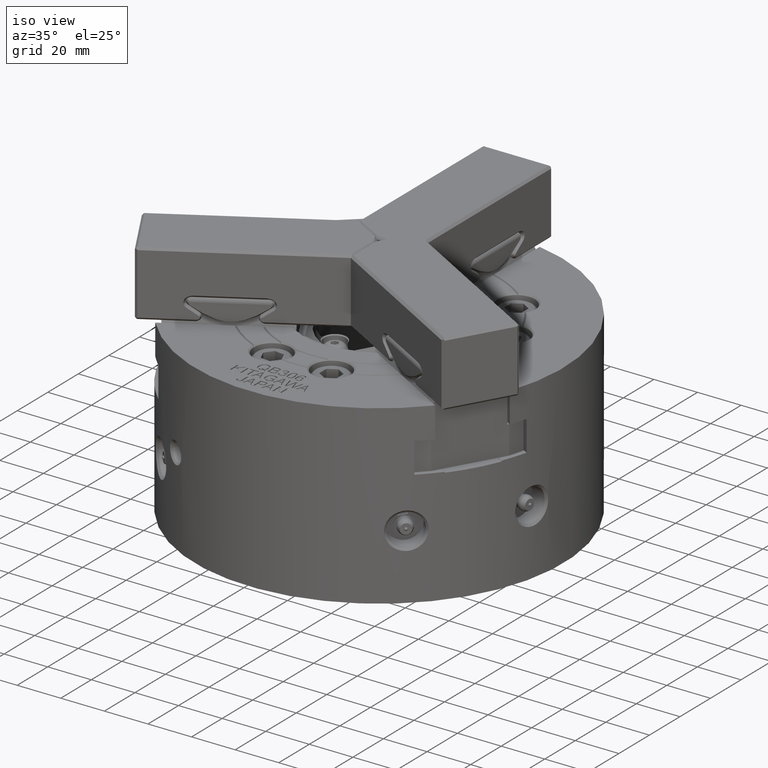
[diagram: clean part render]
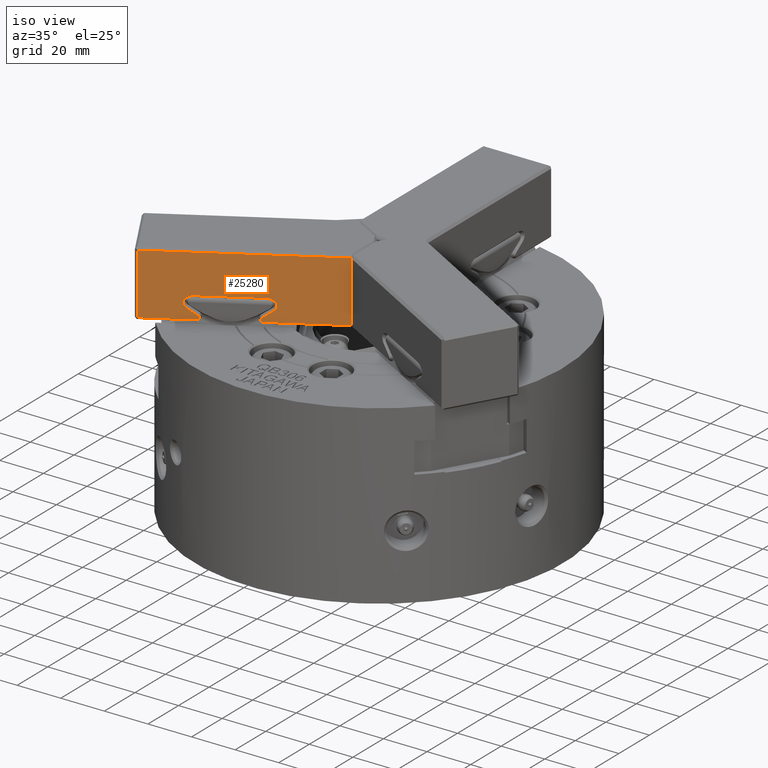
[diagram: same view with one face highlighted and labeled with its STEP entity id]
A machine part, iso view. The second image highlights one B-rep face of the part: STEP entity #25280.
In plain terms, the highlighted planar face has unit normal (0.5, -0.866, 0).
Its self-contained STEP definition (entity closure, byte-faithful):
#991=B_SPLINE_CURVE_WITH_KNOTS('',3,(#46148,#46149,#46150,#46151,#46152,
#46153,#46154,#46155,#46156,#46157),.UNSPECIFIED.,.F.,.F.,(4,1,1,1,1,1,
1,4),(0.,0.25,0.375,0.5,0.5625,0.625,0.75,1.),.UNSPECIFIED.);
#992=B_SPLINE_CURVE_WITH_KNOTS('',3,(#46159,#46160,#46161,#46162),
 .UNSPECIFIED.,.F.,.F.,(4,4),(0.,1.),.UNSPECIFIED.);
#993=B_SPLINE_CURVE_WITH_KNOTS('',3,(#46164,#46165,#46166,#46167,#46168,
#46169,#46170,#46171,#46172,#46173,#46174,#46175,#46176,#46177),
 .UNSPECIFIED.,.F.,.F.,(4,1,1,1,1,1,1,1,1,1,1,4),(0.,0.125,0.25,0.3125,
0.375,0.5,0.625,0.6875,0.75,0.8125,0.875,1.),.UNSPECIFIED.);
#994=B_SPLINE_CURVE_WITH_KNOTS('',3,(#46181,#46182,#46183,#46184,#46185,
#46186,#46187,#46188,#46189,#46190,#46191,#46192,#46193,#46194,#46195,#46196),
 .UNSPECIFIED.,.F.,.F.,(4,1,1,1,1,1,1,1,1,1,1,1,1,4),(0.,0.125,0.1875,0.25,
0.3125,0.375,0.4375,0.5,0.5625,0.625,0.6875,0.75,0.875,1.),
 .UNSPECIFIED.);
#995=B_SPLINE_CURVE_WITH_KNOTS('',3,(#46198,#46199,#46200,#46201),
 .UNSPECIFIED.,.F.,.F.,(4,4),(0.,1.),.UNSPECIFIED.);
#996=B_SPLINE_CURVE_WITH_KNOTS('',3,(#46203,#46204,#46205,#46206,#46207,
#46208,#46209,#46210,#46211,#46212,#46213),.UNSPECIFIED.,.F.,.F.,(4,1,1,
1,1,1,1,1,4),(0.,0.125,0.25,0.375,0.4375,0.5,0.625,0.75,1.),
 .UNSPECIFIED.);
#2835=LINE('',#45259,#4869);
#2923=LINE('',#46142,#4957);
#2924=LINE('',#46144,#4958);
#2925=LINE('',#46146,#4959);
#2926=LINE('',#46179,#4960);
#2927=LINE('',#46215,#4961);
#4869=VECTOR('',#32744,1000.);
#4957=VECTOR('',#32902,1000.);
#4958=VECTOR('',#32903,1000.);
#4959=VECTOR('',#32904,1000.);
#4960=VECTOR('',#32905,1000.);
#4961=VECTOR('',#32906,1000.);
#10535=ORIENTED_EDGE('',*,*,#15199,.F.);
#10536=ORIENTED_EDGE('',*,*,#15353,.T.);
#10537=ORIENTED_EDGE('',*,*,#15354,.T.);
#10538=ORIENTED_EDGE('',*,*,#15355,.T.);
#10539=ORIENTED_EDGE('',*,*,#15356,.T.);
#10540=ORIENTED_EDGE('',*,*,#15357,.T.);
#10541=ORIENTED_EDGE('',*,*,#15358,.T.);
#10542=ORIENTED_EDGE('',*,*,#15359,.T.);
#10543=ORIENTED_EDGE('',*,*,#15360,.T.);
#10544=ORIENTED_EDGE('',*,*,#15361,.T.);
#10545=ORIENTED_EDGE('',*,*,#15362,.T.);
#10546=ORIENTED_EDGE('',*,*,#15363,.T.);
#15199=EDGE_CURVE('',#18023,#18024,#2835,.T.);
#15353=EDGE_CURVE('',#18023,#18134,#2923,.T.);
#15354=EDGE_CURVE('',#18134,#18135,#2924,.T.);
#15355=EDGE_CURVE('',#18135,#18136,#2925,.T.);
#15356=EDGE_CURVE('',#18136,#18137,#991,.T.);
#15357=EDGE_CURVE('',#18137,#18138,#992,.T.);
#15358=EDGE_CURVE('',#18138,#18139,#993,.T.);
#15359=EDGE_CURVE('',#18139,#18140,#2926,.T.);
#15360=EDGE_CURVE('',#18140,#18141,#994,.T.);
#15361=EDGE_CURVE('',#18141,#18142,#995,.T.);
#15362=EDGE_CURVE('',#18142,#18143,#996,.T.);
#15363=EDGE_CURVE('',#18143,#18024,#2927,.T.);
#18023=VERTEX_POINT('',#45258);
#18024=VERTEX_POINT('',#45260);
#18134=VERTEX_POINT('',#46143);
#18135=VERTEX_POINT('',#46145);
#18136=VERTEX_POINT('',#46147);
#18137=VERTEX_POINT('',#46158);
#18138=VERTEX_POINT('',#46163);
#18139=VERTEX_POINT('',#46178);
#18140=VERTEX_POINT('',#46180);
#18141=VERTEX_POINT('',#46197);
#18142=VERTEX_POINT('',#46202);
#18143=VERTEX_POINT('',#46214);
#20790=EDGE_LOOP('',(#10535,#10536,#10537,#10538,#10539,#10540,#10541,#10542,
#10543,#10544,#10545,#10546));
#22720=FACE_BOUND('',#20790,.T.);
#24048=PLANE('',#27438);
#25280=ADVANCED_FACE('',(#22720),#24048,.T.);
#27438=AXIS2_PLACEMENT_3D('',#46141,#32900,#32901);
#32744=DIRECTION('',(0.,0.,-1.));
#32900=DIRECTION('',(0.499999999999999,-0.866025403784439,0.));
#32901=DIRECTION('',(0.866025403784439,0.499999999999999,0.));
#32902=DIRECTION('',(-0.866025403784439,-0.499999999999999,0.));
#32903=DIRECTION('',(0.,0.,-1.));
#32904=DIRECTION('',(0.866025403784439,0.499999999999999,0.));
#32905=DIRECTION('',(0.866025403784439,0.499999999999999,0.));
#32906=DIRECTION('',(0.866025403784439,0.499999999999999,0.));
#45258=CARTESIAN_POINT('',(1.96891114523368E-13,-18.475208614068,30.));
#45259=CARTESIAN_POINT('',(1.99493199737333E-13,-18.475208614068,31.));
#45260=CARTESIAN_POINT('',(1.99059518868339E-13,-18.475208614068,2.));
#46141=CARTESIAN_POINT('',(7.28346642355032,-14.2700973137977,31.));
#46142=CARTESIAN_POINT('',(-69.7927945132648,-58.7700973137976,30.));
#46143=CARTESIAN_POINT('',(-69.7927945132648,-58.7700973137976,30.));
#46144=CARTESIAN_POINT('',(-69.7927945132648,-58.7700973137976,31.));
#46145=CARTESIAN_POINT('',(-69.7927945132648,-58.7700973137976,2.));
#46146=CARTESIAN_POINT('',(7.28346642355032,-14.2700973137977,2.));
#46147=CARTESIAN_POINT('',(-50.7124392808975,-47.7540490841567,2.));
#46148=CARTESIAN_POINT('',(-50.7124392808975,-47.7540490841568,1.99999999999999));
#46149=CARTESIAN_POINT('',(-50.4635996152168,-47.6103814361909,2.00071010643555));
#46150=CARTESIAN_POINT('',(-50.1329431553662,-47.4194768400869,2.05808572921311));
#46151=CARTESIAN_POINT('',(-49.7647326096792,-47.206890382416,2.26750163355856));
#46152=CARTESIAN_POINT('',(-49.5857802298847,-47.1035721777696,2.41994427505268));
#46153=CARTESIAN_POINT('',(-49.4231604798949,-47.0096836213374,2.63600959992255));
#46154=CARTESIAN_POINT('',(-49.33358649954,-46.9579680596671,2.84440033199698));
#46155=CARTESIAN_POINT('',(-49.3228499852013,-46.9517693302235,3.25921531386295));
#46156=CARTESIAN_POINT('',(-49.5284199153666,-47.0704551847418,3.54681886708664));
#46157=CARTESIAN_POINT('',(-49.7516993787809,-47.1993656430485,3.70710678118654));
#46158=CARTESIAN_POINT('',(-49.7516993787809,-47.1993656430485,3.70710678118655));
#46159=CARTESIAN_POINT('',(-49.7516993787809,-47.1993656430485,3.70710678118654));
#46160=CARTESIAN_POINT('',(-50.9861410903959,-47.9120708975483,4.59193035047916));
#46161=CARTESIAN_POINT('',(-52.3235931777369,-48.6842492202029,5.64912130889709));
#46162=CARTESIAN_POINT('',(-53.764055640804,-49.5159006110122,6.87867965644035));
#46163=CARTESIAN_POINT('',(-53.764055640804,-49.5159006110122,6.87867965644035));
#46164=CARTESIAN_POINT('',(-53.764055640804,-49.5159006110122,6.87867965644035));
#46165=CARTESIAN_POINT('',(-54.0288535959541,-49.668781781699,7.10326964046241));
#46166=CARTESIAN_POINT('',(-54.4539658842986,-49.9142204758105,7.60137657183566));
#46167=CARTESIAN_POINT('',(-54.7376287762253,-50.0779933228235,8.37168472617594));
#46168=CARTESIAN_POINT('',(-54.7916557531703,-50.1091858125062,9.0308931964808));
#46169=CARTESIAN_POINT('',(-54.6975225965486,-50.054838009191,9.75391518889932));
#46170=CARTESIAN_POINT('',(-54.3695740869187,-49.8654968488758,10.5205377721706));
#46171=CARTESIAN_POINT('',(-53.850635621152,-49.5658875859725,11.0785085991882));
#46172=CARTESIAN_POINT('',(-53.3498125667833,-49.2767372607164,11.4378075820629));
#46173=CARTESIAN_POINT('',(-52.8900616452277,-49.0112999423961,11.670977265787));
#46174=CARTESIAN_POINT('',(-52.5058517545147,-48.7894762585676,11.8110849070072));
#46175=CARTESIAN_POINT('',(-51.9324994784107,-48.4584511676185,11.9581138525218));
#46176=CARTESIAN_POINT('',(-51.4792833019881,-48.1967866861599,11.9999218721239));
#46177=CARTESIAN_POINT('',(-51.1617711418641,-48.0134709550413,12.));
#46178=CARTESIAN_POINT('',(-51.1617711418641,-48.0134709550412,12.));
#46179=CARTESIAN_POINT('',(-28.8438010291753,-35.1281849027144,12.));
#46180=CARTESIAN_POINT('',(-27.8020396197547,-34.5267236725541,12.));
#46181=CARTESIAN_POINT('',(-27.8020396197589,-34.5267236725565,12.));
#46182=CARTESIAN_POINT('',(-27.4867205088767,-34.344674099008,11.9991890547449));
#46183=CARTESIAN_POINT('',(-27.0361647219011,-34.0845455941127,11.957299953776));
#46184=CARTESIAN_POINT('',(-26.4652198875338,-33.7549104402983,11.8120884982032));
#46185=CARTESIAN_POINT('',(-26.0820084567486,-33.5336632175779,11.6745281555997));
#46186=CARTESIAN_POINT('',(-25.6233978708593,-33.2688842723616,11.4442044238726));
#46187=CARTESIAN_POINT('',(-25.2486298398318,-33.0525118487641,11.1793415954943));
#46188=CARTESIAN_POINT('',(-24.9113408929816,-32.8577779845055,10.8570506961305));
#46189=CARTESIAN_POINT('',(-24.6377432030802,-32.6998162845913,10.5106633306461));
#46190=CARTESIAN_POINT('',(-24.3693515497262,-32.5448602912791,10.029742053916));
#46191=CARTESIAN_POINT('',(-24.2229482482837,-32.460334305781,9.5600985432177));
#46192=CARTESIAN_POINT('',(-24.165792309091,-32.4273353089023,9.06837155613186));
#46193=CARTESIAN_POINT('',(-24.2274897308766,-32.4629563319785,8.36680199470031));
#46194=CARTESIAN_POINT('',(-24.5032200632727,-32.6221493136112,7.61078476499259));
#46195=CARTESIAN_POINT('',(-24.9326070681142,-32.8700560164429,7.10458993630693));
#46196=CARTESIAN_POINT('',(-25.1997551208147,-33.0242940165831,6.87867965644035));
#46197=CARTESIAN_POINT('',(-25.1997551208147,-33.0242940165831,6.87867965644035));
#46198=CARTESIAN_POINT('',(-25.1997551208148,-33.0242940165831,6.87867965644033));
#46199=CARTESIAN_POINT('',(-26.6402175838819,-33.8559454073925,5.64912130889708));
#46200=CARTESIAN_POINT('',(-27.9776696712229,-34.628123730047,4.59193035047914));
#46201=CARTESIAN_POINT('',(-29.2121113828379,-35.3408289845468,3.70710678118653));
#46202=CARTESIAN_POINT('',(-29.2121113828379,-35.3408289845468,3.70710678118654));
#46203=CARTESIAN_POINT('',(-29.2121113828379,-35.3408289845468,3.70710678118654));
#46204=CARTESIAN_POINT('',(-29.3194070697498,-35.4027761782683,3.63012405325066));
#46205=CARTESIAN_POINT('',(-29.4922192769772,-35.5025493526303,3.45912824594307));
#46206=CARTESIAN_POINT('',(-29.6329651628454,-35.5838090277236,3.16437860459251));
#46207=CARTESIAN_POINT('',(-29.6343636932181,-35.5846164696108,2.85478615168038));
#46208=CARTESIAN_POINT('',(-29.5441307419679,-35.5325204509167,2.6409029902128));
#46209=CARTESIAN_POINT('',(-29.3747203301835,-35.4347113040694,2.41558498933241));
#46210=CARTESIAN_POINT('',(-29.1993575776353,-35.3334655716799,2.26815298600829));
#46211=CARTESIAN_POINT('',(-28.8300730499005,-35.1202590501847,2.05725713542863));
#46212=CARTESIAN_POINT('',(-28.5001057070726,-34.9297523159792,2.00070437672067));
#46213=CARTESIAN_POINT('',(-28.2513714807213,-34.7861455434386,1.99999999999999));
#46214=CARTESIAN_POINT('',(-28.2513714807213,-34.7861455434386,2.));
#46215=CARTESIAN_POINT('',(7.28346642355032,-14.2700973137977,2.));